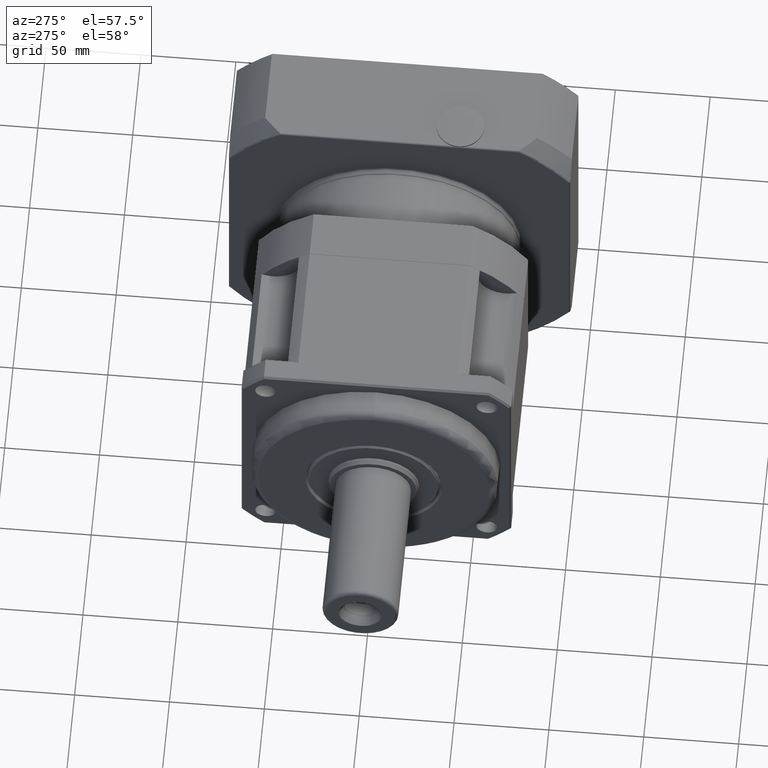
[diagram: clean part render]
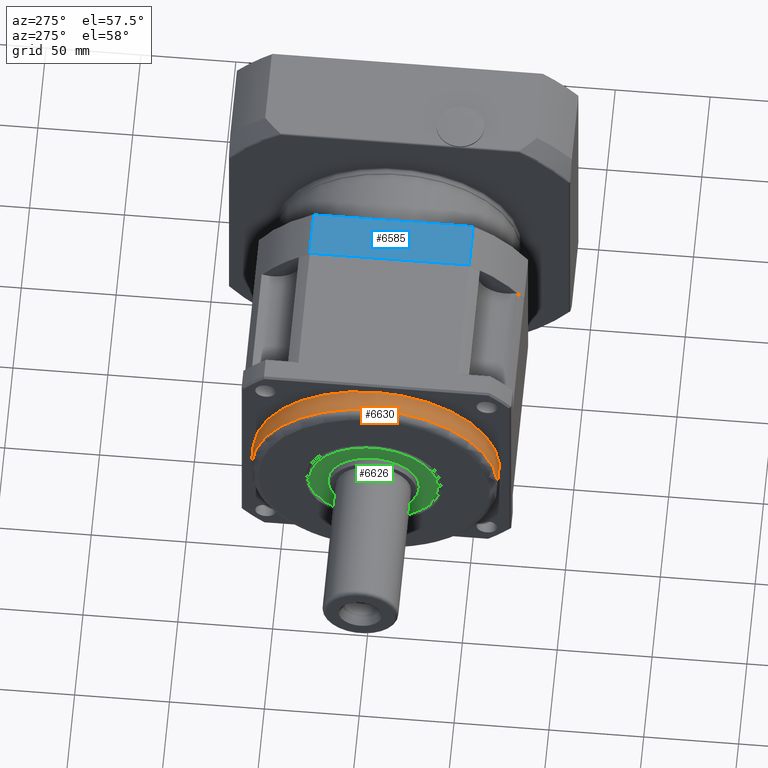
[diagram: same view with three faces highlighted in distinct colors, each labeled with its STEP entity id]
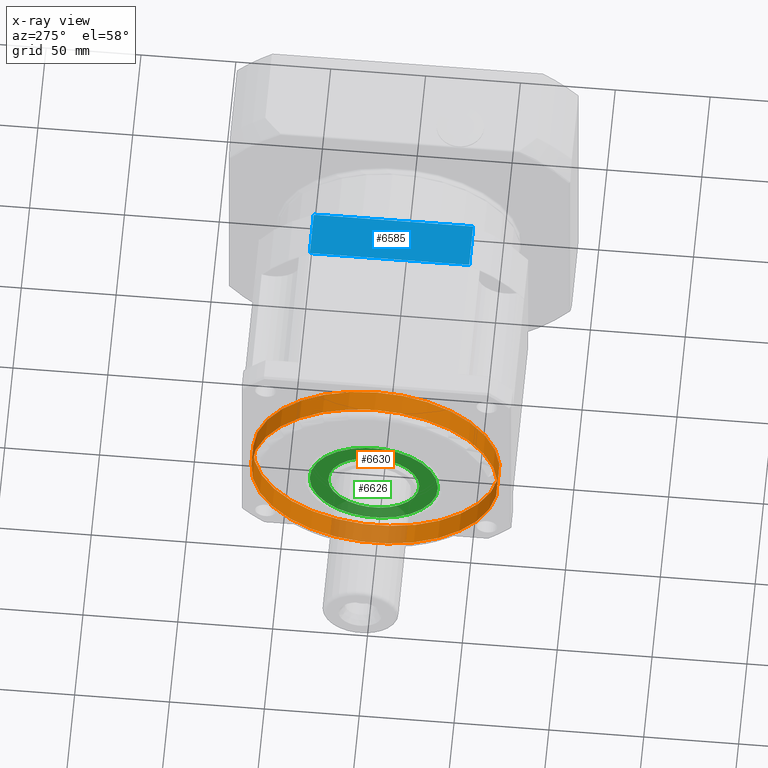
[diagram: x-ray of the same camera — body ghosted, the three highlighted faces saturated]
A machine part, auxiliary view with three faces highlighted in distinct colors.
The next image is the same camera in x-ray (body ghosted, the three faces saturated) — at least one of them is partly hidden behind the body in this view.
Their STEP definitions:

[orange] entity #6630 — the highlighted cylindrical surface (bore or boss wall) has radius 65 mm, axis along (-1, 0, 0).
#1321=CYLINDRICAL_SURFACE('',#7326,65.);
#1500=FACE_BOUND('',#2396,.T.);
#1822=FACE_OUTER_BOUND('',#2395,.T.);
#2395=EDGE_LOOP('',(#5337));
#2396=EDGE_LOOP('',(#5338));
#2907=CIRCLE('',#7325,65.);
#2908=CIRCLE('',#7327,65.);
#3376=VERTEX_POINT('',#11136);
#3377=VERTEX_POINT('',#11139);
#4092=EDGE_CURVE('',#3376,#3376,#2907,.T.);
#4093=EDGE_CURVE('',#3377,#3377,#2908,.T.);
#5337=ORIENTED_EDGE('',*,*,#4093,.F.);
#5338=ORIENTED_EDGE('',*,*,#4092,.F.);
#6630=ADVANCED_FACE('',(#1822,#1500),#1321,.T.);
#7325=AXIS2_PLACEMENT_3D('',#11137,#8740,#8741);
#7326=AXIS2_PLACEMENT_3D('',#11138,#8742,#8743);
#7327=AXIS2_PLACEMENT_3D('',#11140,#8744,#8745);
#8740=DIRECTION('center_axis',(-1.,9.99200722162628E-16,9.84803175675623E-16));
#8741=DIRECTION('ref_axis',(-9.84803175675621E-16,1.5681900222825E-15,-1.));
#8742=DIRECTION('center_axis',(-1.,9.99200722162628E-16,9.84803175675623E-16));
#8743=DIRECTION('ref_axis',(-9.84803175675621E-16,1.5681900222825E-15,-1.));
#8744=DIRECTION('center_axis',(1.,-9.99200722162628E-16,-9.84803175675623E-16));
#8745=DIRECTION('ref_axis',(-9.84803175675621E-16,1.5681900222825E-15,-1.));
#11136=CARTESIAN_POINT('',(-261.559385272836,-150.310004596179,-12.0025259929322));
#11137=CARTESIAN_POINT('Origin',(-261.559385272836,-150.310004596179,-77.0025259929322));
#11138=CARTESIAN_POINT('Origin',(-250.559385272836,-150.310004596179,-77.0025259929322));
#11139=CARTESIAN_POINT('',(-250.559385272836,-150.310004596179,-12.0025259929322));
#11140=CARTESIAN_POINT('Origin',(-250.559385272836,-150.310004596179,-77.0025259929322));

[blue] entity #6585 — the highlighted planar face has unit normal (0, -0, 1).
#288=LINE('',#10843,#596);
#292=LINE('',#10885,#600);
#293=LINE('',#10887,#601);
#294=LINE('',#10888,#602);
#596=VECTOR('',#8543,84.0297566341829);
#600=VECTOR('',#8559,24.);
#601=VECTOR('',#8560,84.0297566341829);
#602=VECTOR('',#8561,24.);
#1777=FACE_OUTER_BOUND('',#2326,.T.);
#2326=EDGE_LOOP('',(#5198,#5199,#5200,#5201));
#3329=VERTEX_POINT('',#10825);
#3330=VERTEX_POINT('',#10842);
#3334=VERTEX_POINT('',#10884);
#3335=VERTEX_POINT('',#10886);
#4021=EDGE_CURVE('',#3330,#3329,#288,.T.);
#4030=EDGE_CURVE('',#3330,#3334,#292,.T.);
#4031=EDGE_CURVE('',#3335,#3334,#293,.T.);
#4032=EDGE_CURVE('',#3335,#3329,#294,.T.);
#5198=ORIENTED_EDGE('',*,*,#4021,.F.);
#5199=ORIENTED_EDGE('',*,*,#4030,.T.);
#5200=ORIENTED_EDGE('',*,*,#4031,.F.);
#5201=ORIENTED_EDGE('',*,*,#4032,.T.);
#6267=PLANE('',#7241);
#6585=ADVANCED_FACE('',(#1777),#6267,.T.);
#7241=AXIS2_PLACEMENT_3D('',#10883,#8557,#8558);
#8543=DIRECTION('',(6.9542537224722E-16,1.,1.79746671381166E-15));
#8557=DIRECTION('center_axis',(1.53804166617373E-15,-1.79746671381166E-15,
1.));
#8558=DIRECTION('ref_axis',(0.,1.,1.77635683940025E-15));
#8559=DIRECTION('',(1.,-6.95425372247217E-16,-1.53804166617373E-15));
#8560=DIRECTION('',(-6.9542537224722E-16,-1.,-1.79746671381166E-15));
#8561=DIRECTION('',(-1.,6.95425372247217E-16,1.53804166617373E-15));
#10825=CARTESIAN_POINT('',(-171.059385272837,-108.295126279088,-6.00252599293216));
#10842=CARTESIAN_POINT('',(-171.059385272837,-192.324882913271,-6.00252599293232));
#10843=CARTESIAN_POINT('',(-171.059385272837,-185.810004596179,-6.0025259929323));
#10883=CARTESIAN_POINT('Origin',(-146.559385272837,-221.310004596179,-6.0025259929324));
#10884=CARTESIAN_POINT('',(-147.059385272837,-192.324882913271,-6.00252599293236));
#10885=CARTESIAN_POINT('',(-146.559385272837,-192.324882913271,-6.00252599293236));
#10886=CARTESIAN_POINT('',(-147.059385272837,-108.295126279088,-6.00252599293221));
#10887=CARTESIAN_POINT('',(-147.059385272837,-185.810004596179,-6.00252599293234));
#10888=CARTESIAN_POINT('',(-146.559385272837,-108.295126279088,-6.00252599293221));

[green] entity #6626 — the highlighted planar face has unit normal (-1, -0, 0).
#1496=FACE_BOUND('',#2388,.T.);
#1818=FACE_OUTER_BOUND('',#2387,.T.);
#2387=EDGE_LOOP('',(#5329));
#2388=EDGE_LOOP('',(#5330));
#2892=CIRCLE('',#7294,24.);
#2904=CIRCLE('',#7318,33.8);
#3361=VERTEX_POINT('',#11090);
#3373=VERTEX_POINT('',#11126);
#4077=EDGE_CURVE('',#3361,#3361,#2892,.T.);
#4089=EDGE_CURVE('',#3373,#3373,#2904,.T.);
#5329=ORIENTED_EDGE('',*,*,#4089,.F.);
#5330=ORIENTED_EDGE('',*,*,#4077,.T.);
#6282=PLANE('',#7319);
#6626=ADVANCED_FACE('',(#1818,#1496),#6282,.T.);
#7294=AXIS2_PLACEMENT_3D('',#11091,#8678,#8679);
#7318=AXIS2_PLACEMENT_3D('',#11127,#8726,#8727);
#7319=AXIS2_PLACEMENT_3D('',#11128,#8728,#8729);
#8678=DIRECTION('center_axis',(1.,1.85037170770864E-16,-1.15918820918506E-15));
#8679=DIRECTION('ref_axis',(-1.15918820918506E-15,-7.77711114992271E-29,
-1.));
#8726=DIRECTION('center_axis',(1.,1.85037170770864E-16,-1.15918820918506E-15));
#8727=DIRECTION('ref_axis',(1.85037170770864E-16,-1.,7.75566185926086E-29));
#8728=DIRECTION('center_axis',(-1.,-1.85037170770864E-16,1.15918820918506E-15));
#8729=DIRECTION('ref_axis',(0.,0.,1.));
#11090=CARTESIAN_POINT('',(-265.559385272836,-126.310004596179,-77.0025259929322));
#11091=CARTESIAN_POINT('Origin',(-265.559385272836,-150.310004596179,-77.0025259929322));
#11126=CARTESIAN_POINT('',(-265.559385272836,-116.510004596179,-77.0025259929322));
#11127=CARTESIAN_POINT('Origin',(-265.559385272836,-150.310004596179,-77.0025259929322));
#11128=CARTESIAN_POINT('Origin',(-265.559385272836,-115.310004596179,-77.0025259929322));